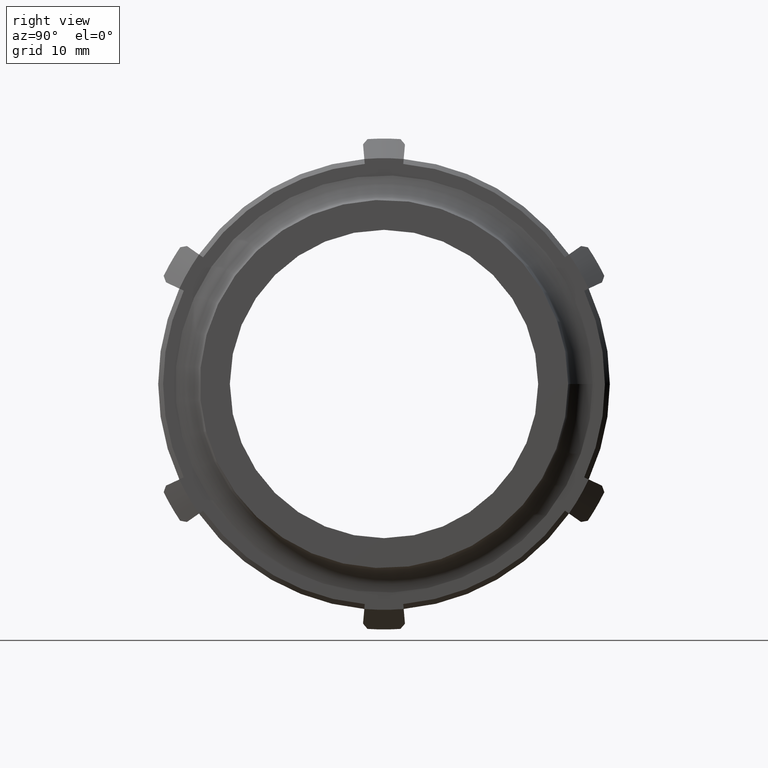
[diagram: clean part render]
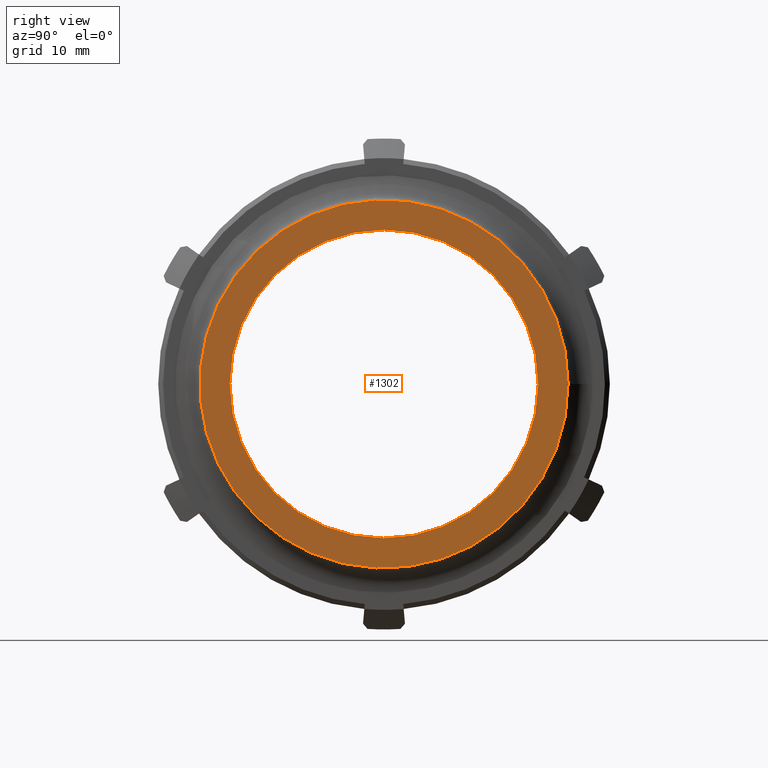
[diagram: same view with one face highlighted and labeled with its STEP entity id]
A machine part, right view. The second image highlights one B-rep face of the part: STEP entity #1302.
In plain terms, the highlighted planar face has unit normal (1, 0, 0).
Its self-contained STEP definition (entity closure, byte-faithful):
#321=PLANE('',#1426);
#328=FACE_BOUND('',#473,.T.);
#398=FACE_OUTER_BOUND('',#472,.T.);
#472=EDGE_LOOP('',(#1225));
#473=EDGE_LOOP('',(#1226));
#498=CIRCLE('',#1327,22.6875);
#536=CIRCLE('',#1427,19.);
#567=VERTEX_POINT('',#1857);
#665=VERTEX_POINT('',#2223);
#696=EDGE_CURVE('',#567,#567,#498,.T.);
#854=EDGE_CURVE('',#665,#665,#536,.T.);
#1225=ORIENTED_EDGE('',*,*,#696,.T.);
#1226=ORIENTED_EDGE('',*,*,#854,.F.);
#1302=ADVANCED_FACE('',(#398,#328),#321,.T.);
#1327=AXIS2_PLACEMENT_3D('',#1858,#1485,#1486);
#1426=AXIS2_PLACEMENT_3D('',#2222,#1779,#1780);
#1427=AXIS2_PLACEMENT_3D('',#2224,#1781,#1782);
#1485=DIRECTION('center_axis',(1.,0.,0.));
#1486=DIRECTION('ref_axis',(0.,0.,-1.));
#1779=DIRECTION('center_axis',(1.,0.,0.));
#1780=DIRECTION('ref_axis',(0.,0.,-1.));
#1781=DIRECTION('center_axis',(1.,0.,0.));
#1782=DIRECTION('ref_axis',(0.,0.,-1.));
#1857=CARTESIAN_POINT('',(37.,22.6875,0.));
#1858=CARTESIAN_POINT('Origin',(37.,0.,0.));
#2222=CARTESIAN_POINT('Origin',(37.,19.,0.));
#2223=CARTESIAN_POINT('',(37.,19.,0.));
#2224=CARTESIAN_POINT('Origin',(37.,0.,0.));